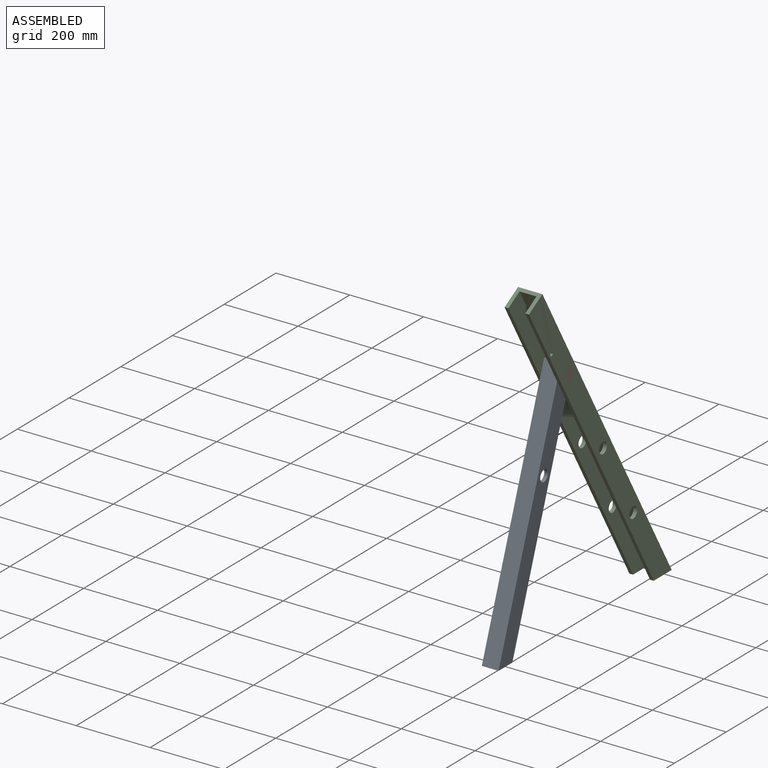
[diagram: assembled view]
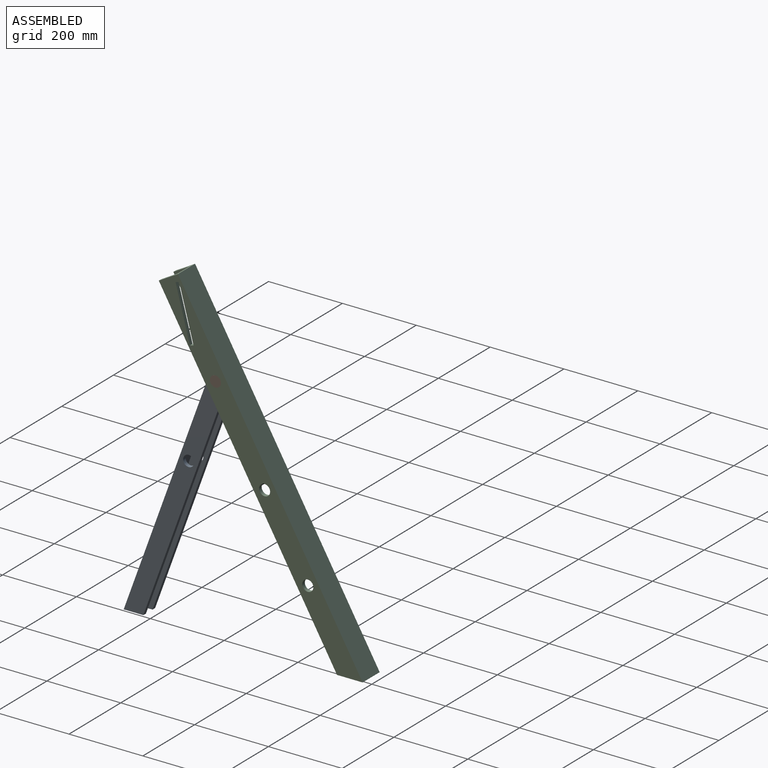
[diagram: assembled view, second angle]
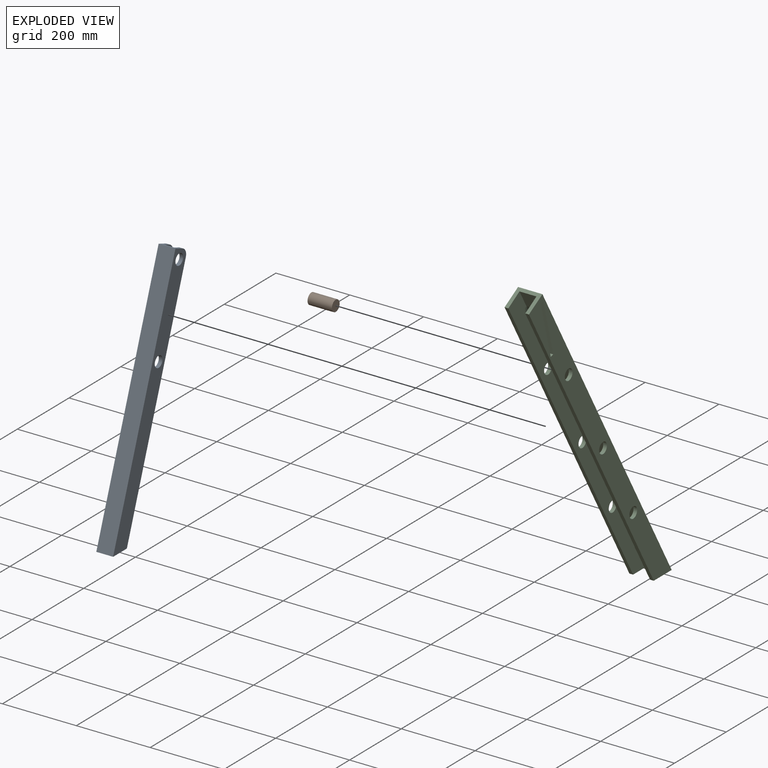
[diagram: exploded view]
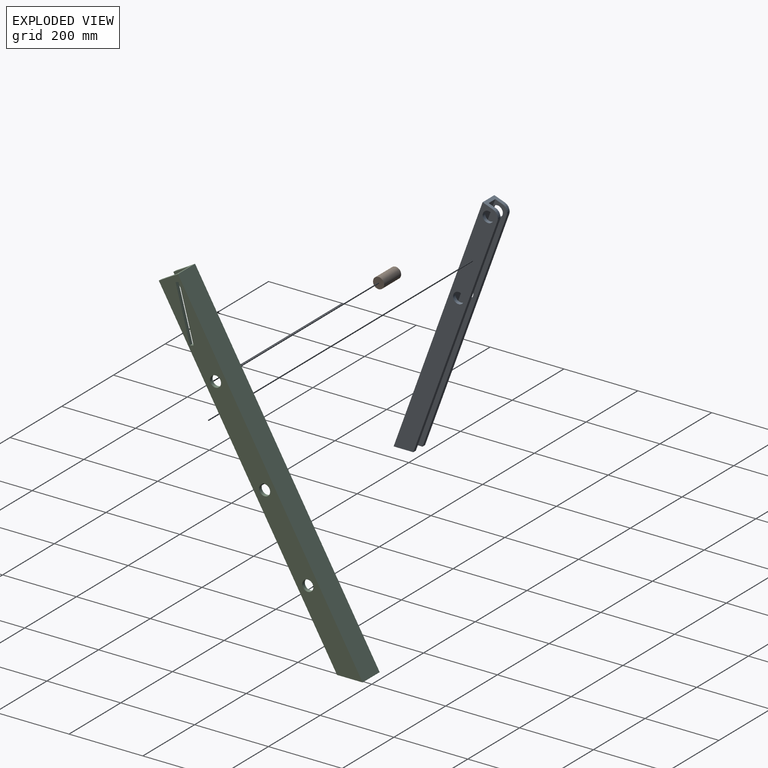
[diagram: exploded view, second angle]
ASSEMBLY  parts=3 mates=4
PART A: 16 faces, bbox 45.5x282.4x662.2 mm
  f0: plane 626.31x227.96mm, normal (0,0.94,-0.34), area 6665mm2, adj f3,f6,f13,f15
  f1: plane 662.2x282.37mm, normal (1,0,0), area 33280.5mm2, adj f2,f7,f8,f11,f12,f13,f14
  f2: plane 626.31x227.96mm, normal (0,0.94,-0.34), area 6665mm2, adj f1,f4,f13,f14
  f3: plane 662.2x282.37mm, normal (-1,0,0), area 33280.5mm2, adj f0,f7,f8,f9,f10,f13,f15
  f4: plane 658.78x271.73mm, normal (-1,0,0), area 26251.7mm2, adj f2,f5,f8,f11,f12,f13,f14
  f5: plane 658.78x239.78mm, normal (0,0.94,-0.34), area 17877mm2, adj f4,f6,f8,f13
  f6: plane 658.78x271.73mm, normal (1,0,0), area 26251.7mm2, adj f0,f5,f8,f9,f10,f13,f15
  f7: plane 662.2x241.02mm, normal (0,-0.94,0.34), area 32063.9mm2, adj f1,f3,f8,f13
  f8: plane 45.5x28.19mm, normal (0,0.34,0.94), area 855mm2, adj f1,f3,f4,f5,f6,f7,f14,f15
  f9: cylinder r=15mm len=30mm, axis (1,0,0), area 942.5mm2, adj f3,f6
  f10: cylinder r=15mm len=30mm, axis (1,0,0), area 942.5mm2, adj f3,f6
  f11: cylinder r=15mm len=30mm, axis (1,0,0), area 942.5mm2, adj f1,f4
  f12: cylinder r=15mm len=30mm, axis (1,0,0), area 942.5mm2, adj f1,f4
  f13: plane 53.21x45.5mm, normal (0,0,-1), area 1335.5mm2, adj f0,f1,f2,f3,f4,f5,f6,f7
  f14: cylinder r=20mm len=25.63mm, axis (-1,0,0), area 314.2mm2, adj f1,f2,f4,f8
  f15: cylinder r=20mm len=25.63mm, axis (-1,0,0), area 314.2mm2, adj f0,f3,f6,f8
PART B: 3 faces, bbox 30x30x66 mm
  f0: cylinder r=15mm len=66mm, axis (0,0,-1), area 6220.4mm2, adj f1,f2
  f1: plane 30x30mm, normal (0,0,1), area 706.9mm2, adj f0
  f2: plane 30x30mm, normal (0,0,-1), area 706.9mm2, adj f0
PART C: 21 faces, bbox 66x552x866 mm
  f0: plane 866.03x551.96mm, normal (1,0,0), area 55340.2mm2, adj f2,f7,f8,f9,f10,f11,f12,f16
  f1: plane 836.03x482.68mm, normal (0,-0.87,-0.5), area 9653.6mm2, adj f3,f4,f8,f9
  f2: plane 836.03x482.68mm, normal (0,-0.87,-0.5), area 9653.6mm2, adj f0,f6,f8,f9
  f3: plane 866.03x551.96mm, normal (-1,0,0), area 56840.2mm2, adj f1,f7,f8,f9,f13,f14,f15
  f4: plane 861.03x540.41mm, normal (1,0,0), area 46869.1mm2, adj f1,f5,f8,f9,f13,f14,f15
  f5: plane 861.03x497.11mm, normal (0,-0.87,-0.5), area 45525.5mm2, adj f4,f6,f8,f9,f18,f19,f20
  f6: plane 861.03x540.41mm, normal (-1,0,0), area 45393.3mm2, adj f2,f5,f8,f9,f10,f11,f12,f16
  f7: plane 866.03x500mm, normal (0,0.87,0.5), area 66000mm2, adj f0,f3,f8,f9
  f8: plane 66x51.96mm, normal (0,-0.5,0.87), area 1660mm2, adj f0,f1,f2,f3,f4,f5,f6,f7
  f9: plane 69.28x66mm, normal (0,0,-1), area 1916.8mm2, adj f0,f1,f2,f3,f4,f5,f6,f7
  f10: cylinder r=15mm len=30mm, axis (1,0,0), area 942.5mm2, adj f0,f6
  f11: cylinder r=15mm len=30mm, axis (1,0,0), area 942.5mm2, adj f0,f6
  f12: cylinder r=15mm len=30mm, axis (1,0,0), area 942.5mm2, adj f0,f6
  f13: cylinder r=15mm len=30mm, axis (1,0,0), area 942.5mm2, adj f3,f4
  f14: cylinder r=15mm len=30mm, axis (1,0,0), area 942.5mm2, adj f3,f4
  f15: cylinder r=15mm len=30mm, axis (1,0,0), area 942.5mm2, adj f3,f4
  f16: plane 144.89x38.82mm, normal (0,0.97,0.26), area 1500mm2, adj f0,f6,f17,f19
  f17: plane 10x9.66mm, normal (0,-0.26,0.97), area 100mm2, adj f0,f6,f16,f18
  f18: plane 144.89x38.82mm, normal (0,-0.97,-0.26), area 1701.8mm2, adj f0,f5,f6,f17,f19,f20
  f19: plane 25x9.66mm, normal (0,0.26,-0.97), area 154.1mm2, adj f0,f5,f6,f16,f18,f20
  f20: plane 13x6.96mm, normal (1,0,0), area 24.3mm2, adj f5,f18,f19
PLACE A at identity fixed
PLACE B rot(axis=(0,-1,0),90deg) t=(33.25,0,0)mm
PLACE C t=(0.25,-130.95,230.84)mm
MATE cylindrical A.f10 <-> C.f12  axis (1,0,0) through (-12.75,0,0)mm
MATE planar C.f12 <-> A.f3  axis (1,0,0) through (-22.75,0,0)mm
MATE cylindrical B.f0 <-> C.f12  axis (-1,0,0) through (-32.75,0,0)mm
MATE planar B.f0 <-> C.f0  axis (1,0,0) through (33.25,0,0)mm
